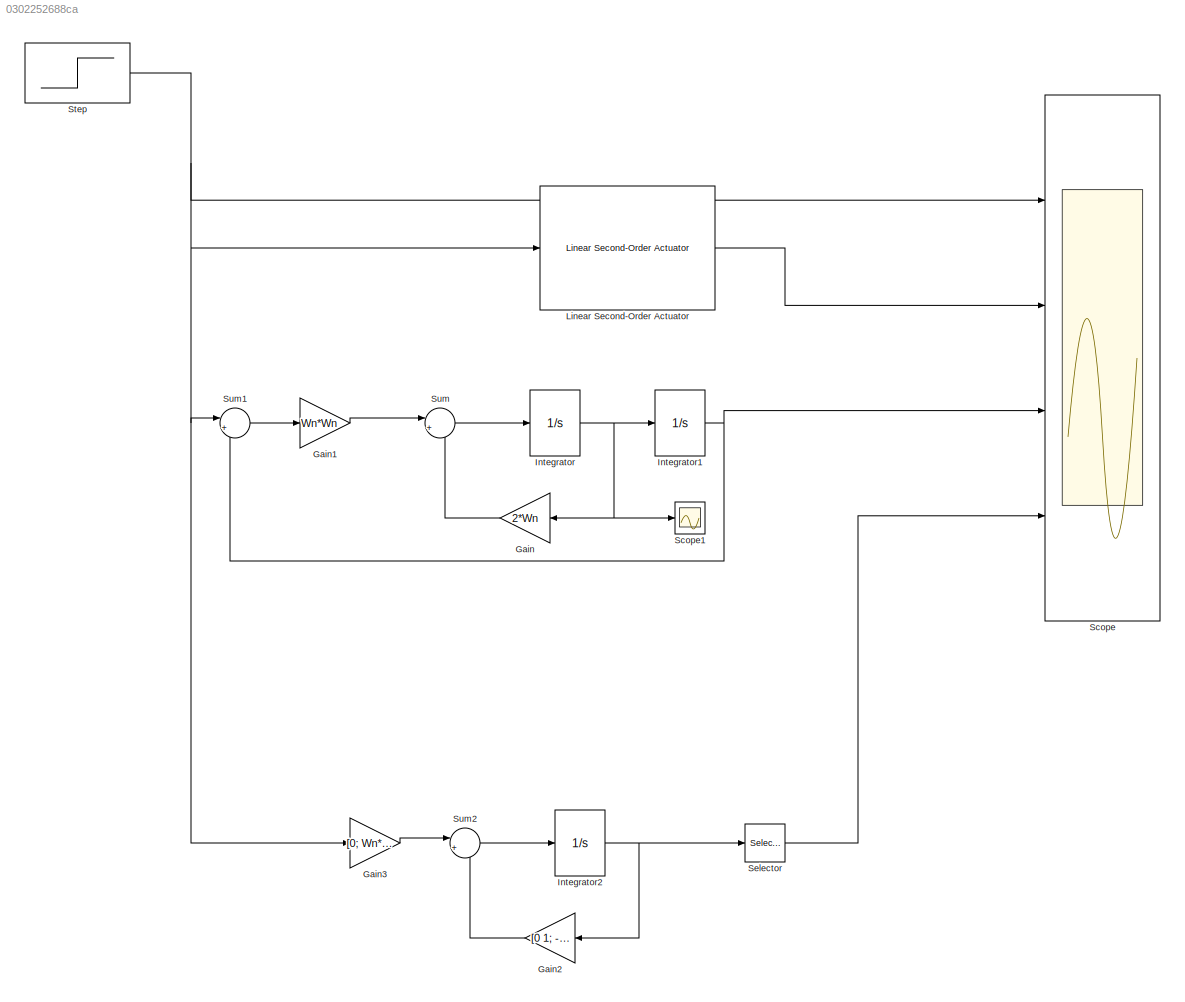
MODEL slx_0302252688ca
KIND model
CONFIG AbsTol = auto
CONFIG EnableMultiTasking = off
CONFIG FixedStep = 0.01
CONFIG MaxStep = auto
CONFIG MinStep = auto
CONFIG RelTol = 1e-3
CONFIG SampleTimeConstraint = Unconstrained
CONFIG SolverName = FixedStepAuto
CONFIG StartTime = 0.0
CONFIG StopTime = 10
WORKSPACE source: mxarray member
WORKSPACE Wn = 1.1
BLOCK [Gain] Gain
  Gain = 2*Wn
BLOCK [Gain] Gain1
  Gain = Wn*Wn
BLOCK [Gain] Gain2
  Gain = [0 1; -Wn*Wn -2*Wn]
  Multiplication = Matrix(K*u)
BLOCK [Gain] Gain3
  Gain = [0; Wn*Wn]
  Multiplication = Matrix(K*u)
BLOCK [Integrator] Integrator
  Ports = [1, 1]
BLOCK [Integrator] Integrator1
  InitialCondition = 82
  Ports = [1, 1]
BLOCK [Integrator] Integrator2
  InitialCondition = [82; 0]
  Ports = [1, 1]
BLOCK [Reference] Linear Second-Order Actuator  REF=aerolibactuator/Linear Second-Order Actuator
  Ports = [1, 1]
  SourceBlock = aerolibactuator/Linear Second-Order Actuator
  SourceProductBaseCode = AE
  SourceType = LinearSecondOrderActuator
BLOCK [Scope] Scope
  Floating = off
  NumInputPorts = 4
  Ports = [4]
  ScopeSpecificationString = Simulink.scopes.TimeScopeBlockCfg('CurrentConfiguration', extmgr.ConfigurationSet(extmgr.Configuration('Core','General UI',true),extmgr.Configuration('Core','Source UI',true),extmgr.Configuration('Sources','WiredSimulink',true),extmgr.Configuration('Visuals','Time Domain',true,'SerializedDisplays',{struct('MinYLimReal','70.75','MaxYLimReal','83.25','YLabelReal','','MinYLimMag','70.75','MaxYLimMag'...<+1583ch>
BLOCK [Scope] Scope1
  Floating = off
  NumInputPorts = 1
  Ports = [1]
  ScopeSpecificationString = Simulink.scopes.TimeScopeBlockCfg('CurrentConfiguration', extmgr.ConfigurationSet(extmgr.Configuration('Core','General UI',true),extmgr.Configuration('Core','Source UI',true),extmgr.Configuration('Sources','WiredSimulink',true,'DataLoggingVariableName','ScopeData1'),extmgr.Configuration('Visuals','Time Domain',true,'SerializedDisplays',{struct('MinYLimReal','-4.55251','MaxYLimReal','0.50583','YLab...<+1400ch>
BLOCK [Selector] Selector
  IndexOptions = Index vector (dialog)
  Indices = [1]
  InputPortWidth = 2
  OutputSizes = 1
  Ports = [1, 1]
BLOCK [Step] Step
  After = 72
  Before = 82
  SampleTime = 0
BLOCK [Sum] Sum
  Inputs = |+-
  Ports = [2, 1]
BLOCK [Sum] Sum1
  Inputs = |+-
  Ports = [2, 1]
BLOCK [Sum] Sum2
  Inputs = |++
  Ports = [2, 1]
LINE Gain1:1 -> Sum:1
LINE Gain2:1 -> Sum2:2
LINE Gain3:1 -> Sum2:1
LINE Gain:1 -> Sum:2
NET Integrator1:1 -> Scope:3, Sum1:2
NET Integrator2:1 -> Gain2:1, Selector:1
NET Integrator:1 -> Gain:1, Integrator1:1, Scope1:1
LINE Linear Second-Order Actuator:1 -> Scope:2
LINE Selector:1 -> Scope:4
NET Step:1 -> Gain3:1, Linear Second-Order Actuator:1, Scope:1, Sum1:1
LINE Sum1:1 -> Gain1:1
LINE Sum2:1 -> Integrator2:1
LINE Sum:1 -> Integrator:1
note: NET lines group one-source signal fan-out (src -> all destinations, sorted); 1:1 wires keep LINE
